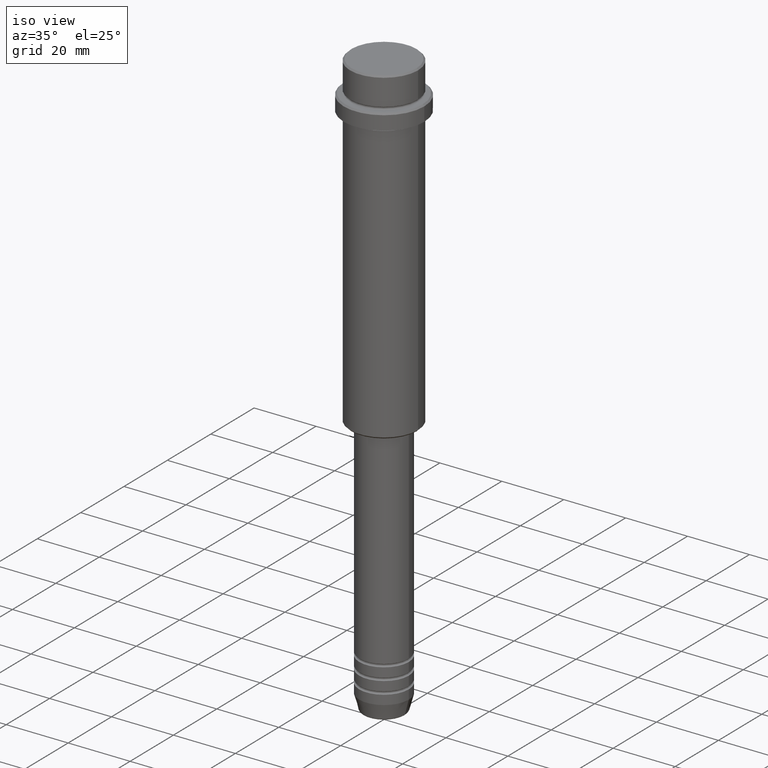
[diagram: clean part render]
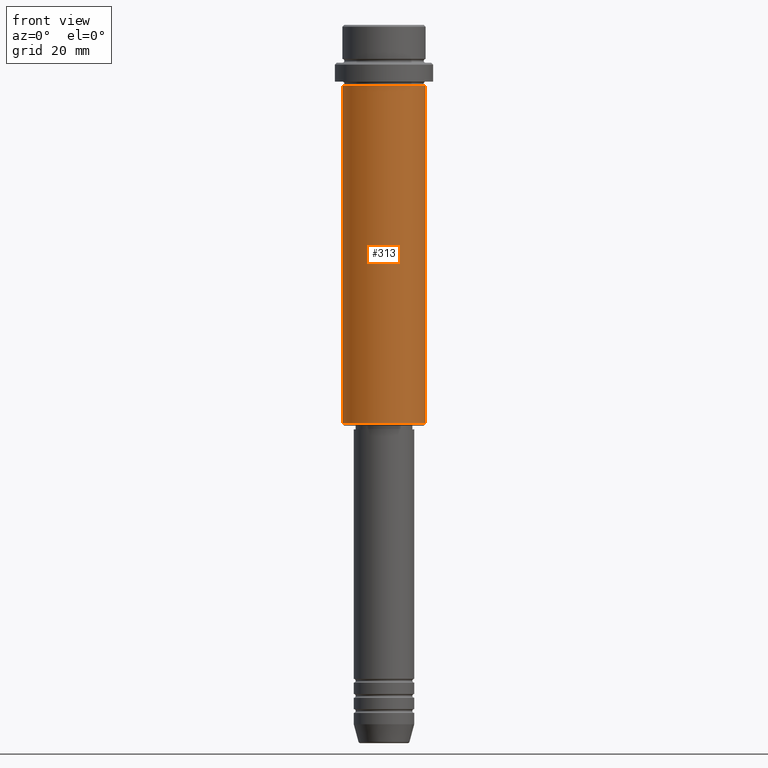
[diagram: tour spotlight — one face highlighted and labeled with its STEP entity id]
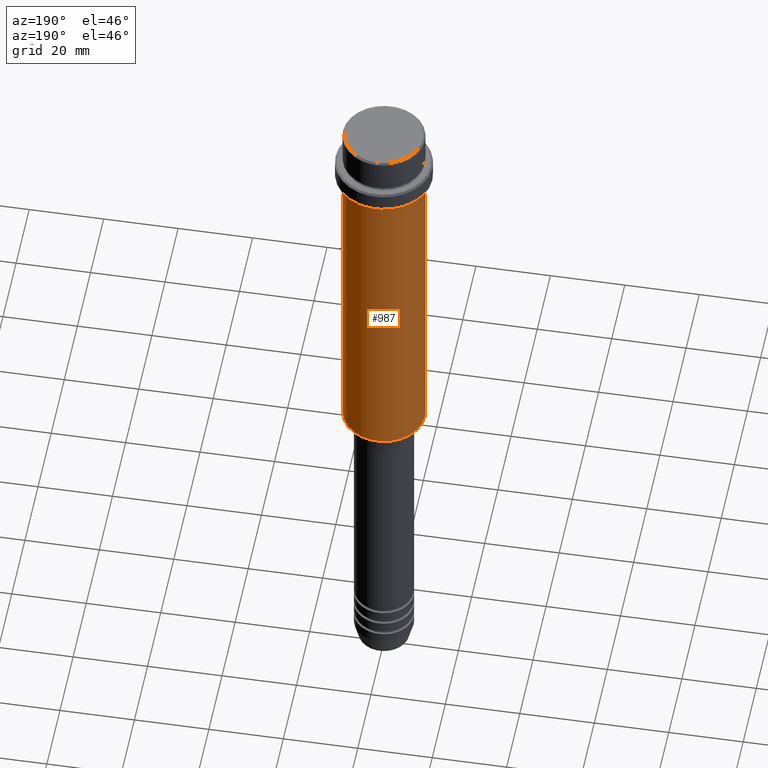
[diagram: tour spotlight — one face highlighted and labeled with its STEP entity id]
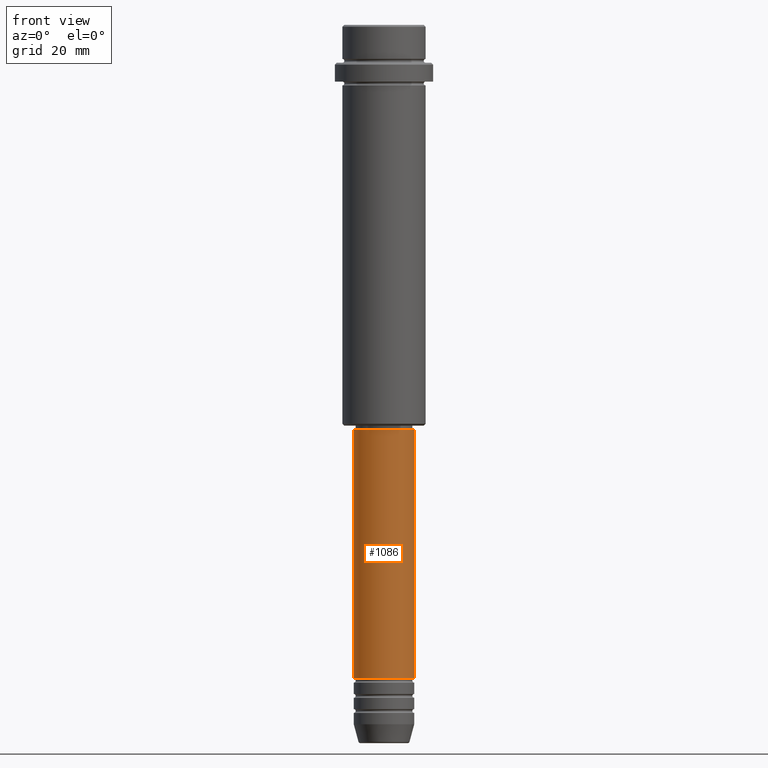
[diagram: tour spotlight — one face highlighted and labeled with its STEP entity id]
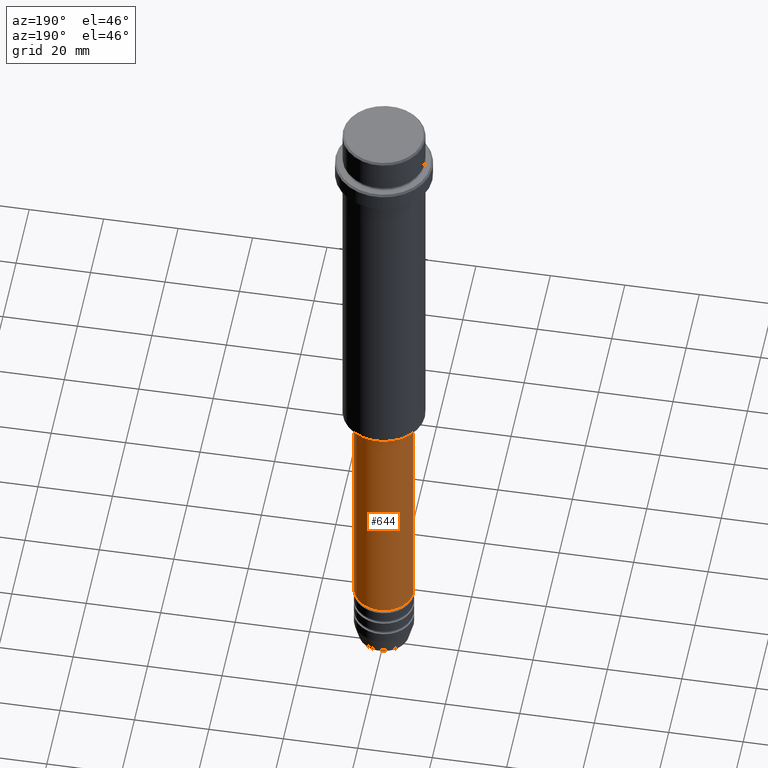
[diagram: tour spotlight — one face highlighted and labeled with its STEP entity id]
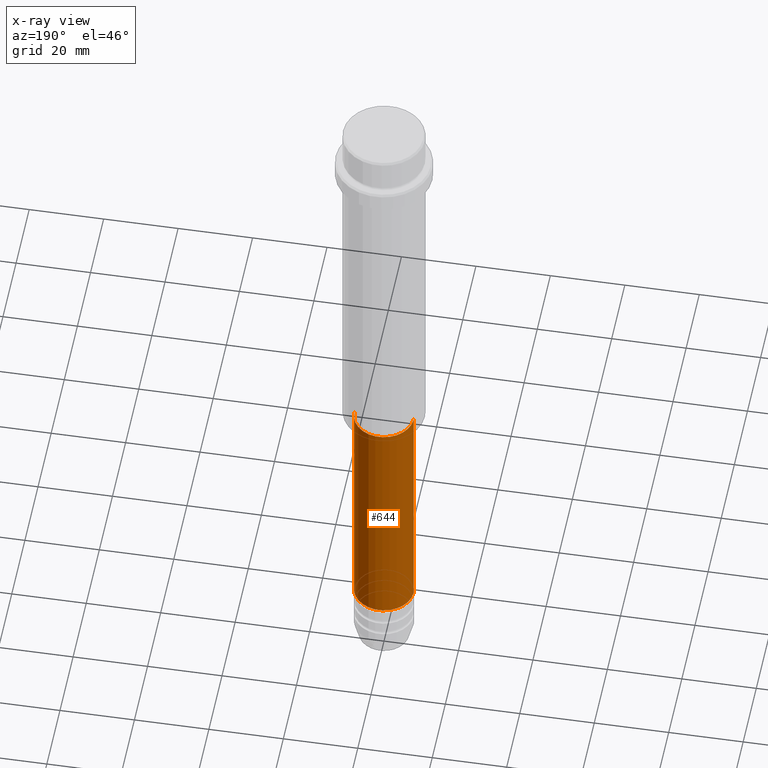
[diagram: x-ray of the same camera — body ghosted, this tour face saturated]
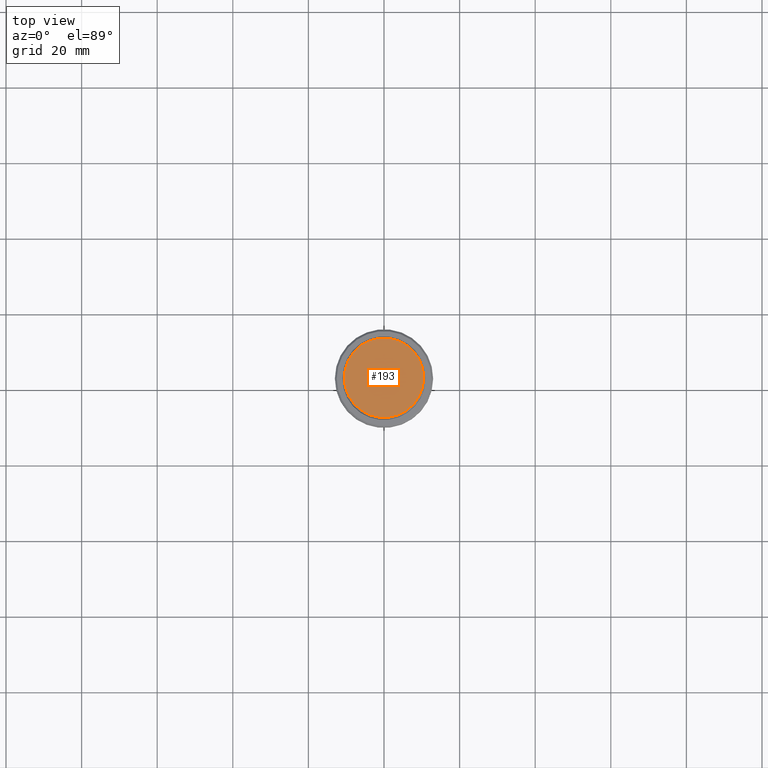
[diagram: tour spotlight — one face highlighted and labeled with its STEP entity id]
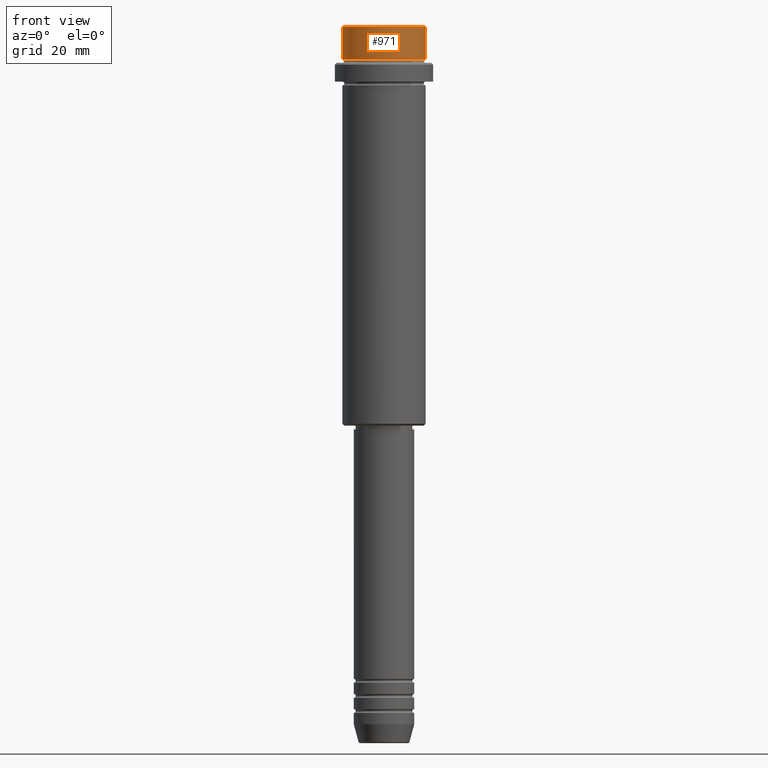
[diagram: tour spotlight — one face highlighted and labeled with its STEP entity id]
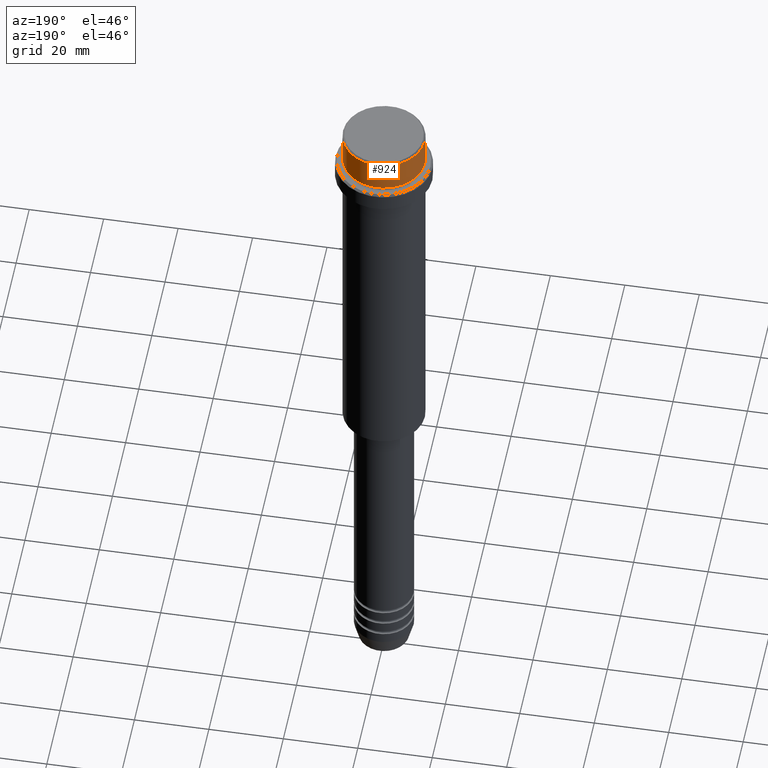
[diagram: tour spotlight — one face highlighted and labeled with its STEP entity id]
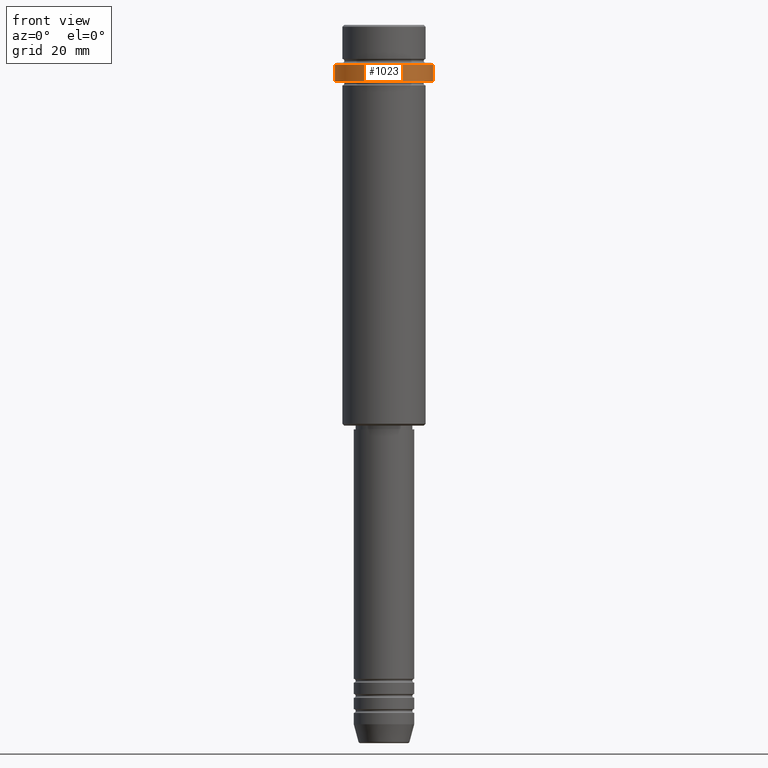
[diagram: tour spotlight — one face highlighted and labeled with its STEP entity id]
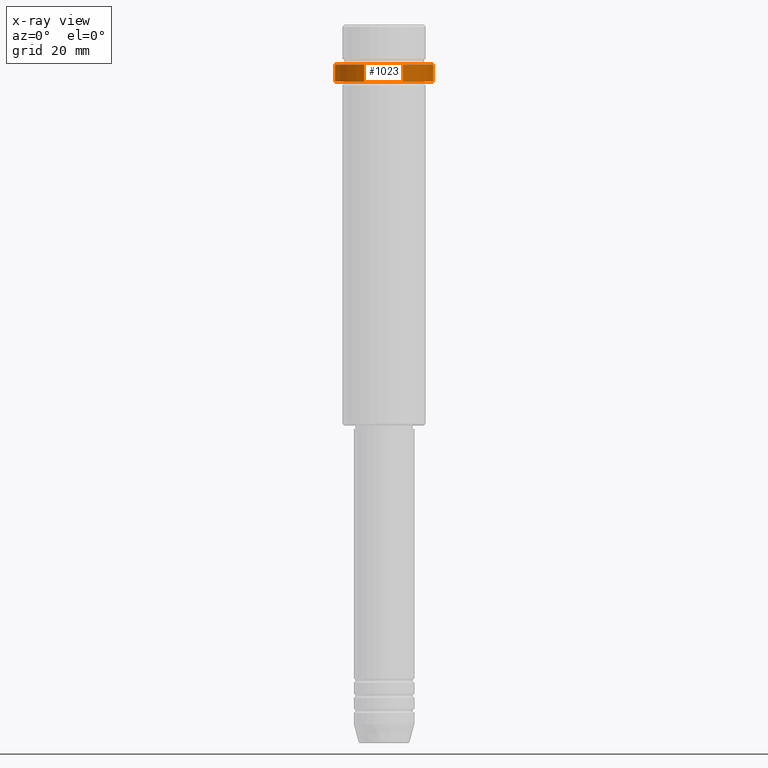
[diagram: x-ray of the same camera — body ghosted, this tour face saturated]
A machine part: a face-by-face anatomy tour. The part has 52 B-rep faces; the first image is the clean iso view, then the 8 largest visible faces are spotlighted one at a time (largest first), each with its STEP entity span.

Face 1 — front view, entity #313. In plain terms, the highlighted cylindrical surface (partial cylindrical patch) has radius 11 mm, axis along (-0, -0, 1).
Definition (entity closure, byte-faithful):
#43 = DIRECTION ( 'NONE',  ( -0.000000000000000000, -0.000000000000000000, 1.000000000000000000 ) ) ;
#83 = ORIENTED_EDGE ( 'NONE', *, *, #1134, .T. ) ;
#132 = CARTESIAN_POINT ( 'NONE',  ( 10.99999999999998757, 0.000000000000000000, -105.5000000000000995 ) ) ;
#171 = VECTOR ( 'NONE', #821, 1000.000000000000000 ) ;
#280 = VERTEX_POINT ( 'NONE', #1356 ) ;
#287 = CARTESIAN_POINT ( 'NONE',  ( 0.000000000000000000, 0.000000000000000000, -16.00000000000000355 ) ) ;
#294 = EDGE_CURVE ( 'NONE', #505, #435, #909, .T. ) ;
#313 = ADVANCED_FACE ( 'NONE', ( #1185 ), #968, .T. ) ;
#323 = CARTESIAN_POINT ( 'NONE',  ( 0.000000000000000000, 0.000000000000000000, -105.5000000000000995 ) ) ;
#435 = VERTEX_POINT ( 'NONE', #132 ) ;
#452 = AXIS2_PLACEMENT_3D ( 'NONE', #287, #43, #510 ) ;
#505 = VERTEX_POINT ( 'NONE', #1106 ) ;
#508 = ORIENTED_EDGE ( 'NONE', *, *, #572, .F. ) ;
#510 = DIRECTION ( 'NONE',  ( 1.000000000000000000, 0.000000000000000000, 0.000000000000000000 ) ) ;
#564 = VECTOR ( 'NONE', #789, 1000.000000000000000 ) ;
#572 = EDGE_CURVE ( 'NONE', #505, #698, #927, .T. ) ;
#635 = DIRECTION ( 'NONE',  ( -1.000000000000000000, 0.000000000000000000, 0.000000000000000000 ) ) ;
#698 = VERTEX_POINT ( 'NONE', #1235 ) ;
#706 = ORIENTED_EDGE ( 'NONE', *, *, #294, .T. ) ;
#708 = EDGE_CURVE ( 'NONE', #698, #280, #1053, .T. ) ;
#789 = DIRECTION ( 'NONE',  ( -0.000000000000000000, -0.000000000000000000, 1.000000000000000000 ) ) ;
#821 = DIRECTION ( 'NONE',  ( -0.000000000000000000, -0.000000000000000000, 1.000000000000000000 ) ) ;
#909 = CIRCLE ( 'NONE', #1099, 10.99999999999998757 ) ;
#927 = LINE ( 'NONE', #1375, #171 ) ;
#968 = CYLINDRICAL_SURFACE ( 'NONE', #1398, 10.99999999999998757 ) ;
#974 = DIRECTION ( 'NONE',  ( -0.000000000000000000, -0.000000000000000000, 1.000000000000000000 ) ) ;
#1053 = CIRCLE ( 'NONE', #452, 10.99999999999997158 ) ;
#1084 = CARTESIAN_POINT ( 'NONE',  ( 0.000000000000000000, 0.000000000000000000, 0.000000000000000000 ) ) ;
#1085 = ORIENTED_EDGE ( 'NONE', *, *, #708, .F. ) ;
#1099 = AXIS2_PLACEMENT_3D ( 'NONE', #323, #1276, #635 ) ;
#1106 = CARTESIAN_POINT ( 'NONE',  ( -10.99999999999998757, 1.347111479062086827E-15, -105.5000000000000995 ) ) ;
#1134 = EDGE_CURVE ( 'NONE', #435, #280, #1326, .T. ) ;
#1185 = FACE_OUTER_BOUND ( 'NONE', #1409, .T. ) ;
#1193 = DIRECTION ( 'NONE',  ( 1.000000000000000000, 0.000000000000000000, 0.000000000000000000 ) ) ;
#1235 = CARTESIAN_POINT ( 'NONE',  ( -10.99999999999997158, 1.347111479062085841E-15, -16.00000000000000355 ) ) ;
#1276 = DIRECTION ( 'NONE',  ( -0.000000000000000000, -0.000000000000000000, 1.000000000000000000 ) ) ;
#1326 = LINE ( 'NONE', #1337, #564 ) ;
#1337 = CARTESIAN_POINT ( 'NONE',  ( 10.99999999999998757, 0.000000000000000000, 0.000000000000000000 ) ) ;
#1356 = CARTESIAN_POINT ( 'NONE',  ( 10.99999999999997158, 0.000000000000000000, -16.00000000000000355 ) ) ;
#1375 = CARTESIAN_POINT ( 'NONE',  ( -10.99999999999998757, 1.347111479062086827E-15, 0.000000000000000000 ) ) ;
#1398 = AXIS2_PLACEMENT_3D ( 'NONE', #1084, #974, #1193 ) ;
#1409 = EDGE_LOOP ( 'NONE', ( #508, #706, #83, #1085 ) ) ;

Face 2 — auxiliary view, entity #987. In plain terms, the highlighted cylindrical surface (partial cylindrical patch) has radius 11 mm, axis along (-0, -0, 1).
Definition (entity closure, byte-faithful):
#6 = AXIS2_PLACEMENT_3D ( 'NONE', #388, #1044, #720 ) ;
#132 = CARTESIAN_POINT ( 'NONE',  ( 10.99999999999998757, 0.000000000000000000, -105.5000000000000995 ) ) ;
#162 = EDGE_CURVE ( 'NONE', #435, #505, #1050, .T. ) ;
#171 = VECTOR ( 'NONE', #821, 1000.000000000000000 ) ;
#215 = ORIENTED_EDGE ( 'NONE', *, *, #572, .T. ) ;
#223 = CARTESIAN_POINT ( 'NONE',  ( 0.000000000000000000, 0.000000000000000000, -16.00000000000000355 ) ) ;
#280 = VERTEX_POINT ( 'NONE', #1356 ) ;
#318 = DIRECTION ( 'NONE',  ( 1.000000000000000000, 0.000000000000000000, 0.000000000000000000 ) ) ;
#331 = CIRCLE ( 'NONE', #1401, 10.99999999999997158 ) ;
#388 = CARTESIAN_POINT ( 'NONE',  ( 0.000000000000000000, 0.000000000000000000, -105.5000000000000995 ) ) ;
#435 = VERTEX_POINT ( 'NONE', #132 ) ;
#505 = VERTEX_POINT ( 'NONE', #1106 ) ;
#564 = VECTOR ( 'NONE', #789, 1000.000000000000000 ) ;
#568 = ORIENTED_EDGE ( 'NONE', *, *, #1134, .F. ) ;
#572 = EDGE_CURVE ( 'NONE', #505, #698, #927, .T. ) ;
#604 = ORIENTED_EDGE ( 'NONE', *, *, #1058, .F. ) ;
#605 = FACE_OUTER_BOUND ( 'NONE', #1301, .T. ) ;
#641 = CYLINDRICAL_SURFACE ( 'NONE', #1255, 10.99999999999998757 ) ;
#659 = CARTESIAN_POINT ( 'NONE',  ( 0.000000000000000000, 0.000000000000000000, 0.000000000000000000 ) ) ;
#698 = VERTEX_POINT ( 'NONE', #1235 ) ;
#720 = DIRECTION ( 'NONE',  ( -1.000000000000000000, 0.000000000000000000, 0.000000000000000000 ) ) ;
#789 = DIRECTION ( 'NONE',  ( -0.000000000000000000, -0.000000000000000000, 1.000000000000000000 ) ) ;
#821 = DIRECTION ( 'NONE',  ( -0.000000000000000000, -0.000000000000000000, 1.000000000000000000 ) ) ;
#859 = DIRECTION ( 'NONE',  ( -0.000000000000000000, -0.000000000000000000, 1.000000000000000000 ) ) ;
#927 = LINE ( 'NONE', #1375, #171 ) ;
#987 = ADVANCED_FACE ( 'NONE', ( #605 ), #641, .T. ) ;
#1044 = DIRECTION ( 'NONE',  ( -0.000000000000000000, -0.000000000000000000, 1.000000000000000000 ) ) ;
#1050 = CIRCLE ( 'NONE', #6, 10.99999999999998757 ) ;
#1058 = EDGE_CURVE ( 'NONE', #280, #698, #331, .T. ) ;
#1072 = ORIENTED_EDGE ( 'NONE', *, *, #162, .T. ) ;
#1106 = CARTESIAN_POINT ( 'NONE',  ( -10.99999999999998757, 1.347111479062086827E-15, -105.5000000000000995 ) ) ;
#1134 = EDGE_CURVE ( 'NONE', #435, #280, #1326, .T. ) ;
#1200 = DIRECTION ( 'NONE',  ( -0.000000000000000000, -0.000000000000000000, 1.000000000000000000 ) ) ;
#1235 = CARTESIAN_POINT ( 'NONE',  ( -10.99999999999997158, 1.347111479062085841E-15, -16.00000000000000355 ) ) ;
#1255 = AXIS2_PLACEMENT_3D ( 'NONE', #659, #1200, #1413 ) ;
#1301 = EDGE_LOOP ( 'NONE', ( #1072, #215, #604, #568 ) ) ;
#1326 = LINE ( 'NONE', #1337, #564 ) ;
#1337 = CARTESIAN_POINT ( 'NONE',  ( 10.99999999999998757, 0.000000000000000000, 0.000000000000000000 ) ) ;
#1356 = CARTESIAN_POINT ( 'NONE',  ( 10.99999999999997158, 0.000000000000000000, -16.00000000000000355 ) ) ;
#1375 = CARTESIAN_POINT ( 'NONE',  ( -10.99999999999998757, 1.347111479062086827E-15, 0.000000000000000000 ) ) ;
#1401 = AXIS2_PLACEMENT_3D ( 'NONE', #223, #859, #318 ) ;
#1413 = DIRECTION ( 'NONE',  ( 1.000000000000000000, 0.000000000000000000, 0.000000000000000000 ) ) ;

Face 3 — front view, entity #1086. In plain terms, the highlighted cylindrical surface (edge-blend (fillet) strip) has radius 8 mm, axis along (-0, -0, 1).
Definition (entity closure, byte-faithful):
#39 = CARTESIAN_POINT ( 'NONE',  ( 0.000000000000000000, 0.000000000000000000, 0.000000000000000000 ) ) ;
#94 = EDGE_CURVE ( 'NONE', #920, #231, #351, .T. ) ;
#118 = EDGE_CURVE ( 'NONE', #231, #265, #1336, .T. ) ;
#124 = FACE_OUTER_BOUND ( 'NONE', #685, .T. ) ;
#146 = AXIS2_PLACEMENT_3D ( 'NONE', #404, #1022, #487 ) ;
#149 = CARTESIAN_POINT ( 'NONE',  ( -8.000000000000000000, 9.797174393178825657E-16, -172.9999999999999147 ) ) ;
#154 = DIRECTION ( 'NONE',  ( 1.000000000000000000, 0.000000000000000000, 0.000000000000000000 ) ) ;
#157 = CARTESIAN_POINT ( 'NONE',  ( 8.000000000000000000, 0.000000000000000000, -107.0000000000000000 ) ) ;
#169 = CARTESIAN_POINT ( 'NONE',  ( -8.000000000000000000, 9.797174393178825657E-16, 0.000000000000000000 ) ) ;
#231 = VERTEX_POINT ( 'NONE', #1262 ) ;
#265 = VERTEX_POINT ( 'NONE', #157 ) ;
#284 = AXIS2_PLACEMENT_3D ( 'NONE', #39, #1003, #997 ) ;
#351 = CIRCLE ( 'NONE', #426, 8.000000000000000000 ) ;
#364 = CARTESIAN_POINT ( 'NONE',  ( 8.000000000000000000, 0.000000000000000000, 0.000000000000000000 ) ) ;
#404 = CARTESIAN_POINT ( 'NONE',  ( 0.000000000000000000, 0.000000000000000000, -107.0000000000000000 ) ) ;
#426 = AXIS2_PLACEMENT_3D ( 'NONE', #591, #1203, #154 ) ;
#487 = DIRECTION ( 'NONE',  ( 1.000000000000000000, 0.000000000000000000, 0.000000000000000000 ) ) ;
#557 = ORIENTED_EDGE ( 'NONE', *, *, #94, .T. ) ;
#591 = CARTESIAN_POINT ( 'NONE',  ( 0.000000000000000000, 0.000000000000000000, -172.9999999999999147 ) ) ;
#636 = ORIENTED_EDGE ( 'NONE', *, *, #118, .T. ) ;
#649 = CIRCLE ( 'NONE', #146, 8.000000000000000000 ) ;
#685 = EDGE_LOOP ( 'NONE', ( #1259, #557, #636, #882 ) ) ;
#691 = EDGE_CURVE ( 'NONE', #1342, #265, #649, .T. ) ;
#709 = VECTOR ( 'NONE', #788, 1000.000000000000000 ) ;
#788 = DIRECTION ( 'NONE',  ( -0.000000000000000000, -0.000000000000000000, 1.000000000000000000 ) ) ;
#882 = ORIENTED_EDGE ( 'NONE', *, *, #691, .F. ) ;
#885 = CYLINDRICAL_SURFACE ( 'NONE', #284, 8.000000000000000000 ) ;
#920 = VERTEX_POINT ( 'NONE', #149 ) ;
#977 = EDGE_CURVE ( 'NONE', #920, #1342, #1371, .T. ) ;
#997 = DIRECTION ( 'NONE',  ( 1.000000000000000000, 0.000000000000000000, 0.000000000000000000 ) ) ;
#1003 = DIRECTION ( 'NONE',  ( -0.000000000000000000, -0.000000000000000000, 1.000000000000000000 ) ) ;
#1022 = DIRECTION ( 'NONE',  ( -0.000000000000000000, -0.000000000000000000, 1.000000000000000000 ) ) ;
#1063 = CARTESIAN_POINT ( 'NONE',  ( -8.000000000000000000, 9.797174393178825657E-16, -107.0000000000000000 ) ) ;
#1086 = ADVANCED_FACE ( 'NONE', ( #124 ), #885, .T. ) ;
#1151 = DIRECTION ( 'NONE',  ( -0.000000000000000000, -0.000000000000000000, 1.000000000000000000 ) ) ;
#1203 = DIRECTION ( 'NONE',  ( -0.000000000000000000, -0.000000000000000000, 1.000000000000000000 ) ) ;
#1229 = VECTOR ( 'NONE', #1151, 1000.000000000000000 ) ;
#1259 = ORIENTED_EDGE ( 'NONE', *, *, #977, .F. ) ;
#1262 = CARTESIAN_POINT ( 'NONE',  ( 8.000000000000000000, 0.000000000000000000, -172.9999999999999147 ) ) ;
#1336 = LINE ( 'NONE', #364, #709 ) ;
#1342 = VERTEX_POINT ( 'NONE', #1063 ) ;
#1371 = LINE ( 'NONE', #169, #1229 ) ;

Face 4 — auxiliary view, entity #644. An x-ray twin of the same camera follows (body ghosted, this face saturated) — the face is partly hidden behind the body. In plain terms, the highlighted cylindrical surface (edge-blend (fillet) strip) has radius 8 mm, axis along (-0, -0, 1).
Definition (entity closure, byte-faithful):
#10 = CARTESIAN_POINT ( 'NONE',  ( 0.000000000000000000, 0.000000000000000000, -107.0000000000000000 ) ) ;
#36 = EDGE_CURVE ( 'NONE', #231, #920, #398, .T. ) ;
#53 = FACE_OUTER_BOUND ( 'NONE', #733, .T. ) ;
#104 = EDGE_CURVE ( 'NONE', #265, #1342, #234, .T. ) ;
#118 = EDGE_CURVE ( 'NONE', #231, #265, #1336, .T. ) ;
#125 = AXIS2_PLACEMENT_3D ( 'NONE', #1111, #476, #584 ) ;
#139 = DIRECTION ( 'NONE',  ( 1.000000000000000000, 0.000000000000000000, 0.000000000000000000 ) ) ;
#149 = CARTESIAN_POINT ( 'NONE',  ( -8.000000000000000000, 9.797174393178825657E-16, -172.9999999999999147 ) ) ;
#157 = CARTESIAN_POINT ( 'NONE',  ( 8.000000000000000000, 0.000000000000000000, -107.0000000000000000 ) ) ;
#169 = CARTESIAN_POINT ( 'NONE',  ( -8.000000000000000000, 9.797174393178825657E-16, 0.000000000000000000 ) ) ;
#219 = AXIS2_PLACEMENT_3D ( 'NONE', #687, #590, #718 ) ;
#231 = VERTEX_POINT ( 'NONE', #1262 ) ;
#234 = CIRCLE ( 'NONE', #1249, 8.000000000000000000 ) ;
#265 = VERTEX_POINT ( 'NONE', #157 ) ;
#364 = CARTESIAN_POINT ( 'NONE',  ( 8.000000000000000000, 0.000000000000000000, 0.000000000000000000 ) ) ;
#398 = CIRCLE ( 'NONE', #125, 8.000000000000000000 ) ;
#476 = DIRECTION ( 'NONE',  ( -0.000000000000000000, -0.000000000000000000, 1.000000000000000000 ) ) ;
#584 = DIRECTION ( 'NONE',  ( 1.000000000000000000, 0.000000000000000000, 0.000000000000000000 ) ) ;
#590 = DIRECTION ( 'NONE',  ( -0.000000000000000000, -0.000000000000000000, 1.000000000000000000 ) ) ;
#644 = ADVANCED_FACE ( 'NONE', ( #53 ), #921, .T. ) ;
#687 = CARTESIAN_POINT ( 'NONE',  ( 0.000000000000000000, 0.000000000000000000, 0.000000000000000000 ) ) ;
#709 = VECTOR ( 'NONE', #788, 1000.000000000000000 ) ;
#718 = DIRECTION ( 'NONE',  ( 1.000000000000000000, 0.000000000000000000, 0.000000000000000000 ) ) ;
#733 = EDGE_LOOP ( 'NONE', ( #942, #846, #1307, #1389 ) ) ;
#788 = DIRECTION ( 'NONE',  ( -0.000000000000000000, -0.000000000000000000, 1.000000000000000000 ) ) ;
#846 = ORIENTED_EDGE ( 'NONE', *, *, #977, .T. ) ;
#920 = VERTEX_POINT ( 'NONE', #149 ) ;
#921 = CYLINDRICAL_SURFACE ( 'NONE', #219, 8.000000000000000000 ) ;
#942 = ORIENTED_EDGE ( 'NONE', *, *, #36, .T. ) ;
#977 = EDGE_CURVE ( 'NONE', #920, #1342, #1371, .T. ) ;
#1063 = CARTESIAN_POINT ( 'NONE',  ( -8.000000000000000000, 9.797174393178825657E-16, -107.0000000000000000 ) ) ;
#1111 = CARTESIAN_POINT ( 'NONE',  ( 0.000000000000000000, 0.000000000000000000, -172.9999999999999147 ) ) ;
#1151 = DIRECTION ( 'NONE',  ( -0.000000000000000000, -0.000000000000000000, 1.000000000000000000 ) ) ;
#1229 = VECTOR ( 'NONE', #1151, 1000.000000000000000 ) ;
#1249 = AXIS2_PLACEMENT_3D ( 'NONE', #10, #1310, #139 ) ;
#1262 = CARTESIAN_POINT ( 'NONE',  ( 8.000000000000000000, 0.000000000000000000, -172.9999999999999147 ) ) ;
#1307 = ORIENTED_EDGE ( 'NONE', *, *, #104, .F. ) ;
#1310 = DIRECTION ( 'NONE',  ( -0.000000000000000000, -0.000000000000000000, 1.000000000000000000 ) ) ;
#1336 = LINE ( 'NONE', #364, #709 ) ;
#1342 = VERTEX_POINT ( 'NONE', #1063 ) ;
#1371 = LINE ( 'NONE', #169, #1229 ) ;
#1389 = ORIENTED_EDGE ( 'NONE', *, *, #118, .F. ) ;

Face 5 — top view, entity #193. In plain terms, the highlighted planar face has unit normal (0, -0, 1).
Definition (entity closure, byte-faithful):
#38 = FACE_OUTER_BOUND ( 'NONE', #973, .T. ) ;
#49 = AXIS2_PLACEMENT_3D ( 'NONE', #865, #551, #1285 ) ;
#60 = VERTEX_POINT ( 'NONE', #884 ) ;
#192 = AXIS2_PLACEMENT_3D ( 'NONE', #276, #406, #1160 ) ;
#193 = ADVANCED_FACE ( 'NONE', ( #38 ), #834, .T. ) ;
#276 = CARTESIAN_POINT ( 'NONE',  ( 0.000000000000000000, 0.000000000000000000, 0.000000000000000000 ) ) ;
#298 = ORIENTED_EDGE ( 'NONE', *, *, #705, .T. ) ;
#301 = EDGE_CURVE ( 'NONE', #1290, #60, #799, .T. ) ;
#406 = DIRECTION ( 'NONE',  ( 0.000000000000000000, -0.000000000000000000, 1.000000000000000000 ) ) ;
#417 = CARTESIAN_POINT ( 'NONE',  ( 10.50000000000000888, 1.316495309083404420E-15, 0.000000000000000000 ) ) ;
#551 = DIRECTION ( 'NONE',  ( -0.000000000000000000, -0.000000000000000000, 1.000000000000000000 ) ) ;
#595 = DIRECTION ( 'NONE',  ( -0.000000000000000000, -0.000000000000000000, 1.000000000000000000 ) ) ;
#705 = EDGE_CURVE ( 'NONE', #60, #1290, #759, .T. ) ;
#707 = CARTESIAN_POINT ( 'NONE',  ( 0.000000000000000000, 0.000000000000000000, 0.000000000000000000 ) ) ;
#759 = CIRCLE ( 'NONE', #1352, 10.50000000000000888 ) ;
#799 = CIRCLE ( 'NONE', #49, 10.50000000000000888 ) ;
#834 = PLANE ( 'NONE',  #192 ) ;
#865 = CARTESIAN_POINT ( 'NONE',  ( 0.000000000000000000, 0.000000000000000000, 0.000000000000000000 ) ) ;
#868 = ORIENTED_EDGE ( 'NONE', *, *, #301, .T. ) ;
#884 = CARTESIAN_POINT ( 'NONE',  ( -10.50000000000000888, 0.000000000000000000, 0.000000000000000000 ) ) ;
#973 = EDGE_LOOP ( 'NONE', ( #298, #868 ) ) ;
#1160 = DIRECTION ( 'NONE',  ( 1.000000000000000000, 0.000000000000000000, 0.000000000000000000 ) ) ;
#1230 = DIRECTION ( 'NONE',  ( 1.000000000000000000, 0.000000000000000000, 0.000000000000000000 ) ) ;
#1285 = DIRECTION ( 'NONE',  ( 1.000000000000000000, 0.000000000000000000, 0.000000000000000000 ) ) ;
#1290 = VERTEX_POINT ( 'NONE', #417 ) ;
#1352 = AXIS2_PLACEMENT_3D ( 'NONE', #707, #595, #1230 ) ;

Face 6 — front view, entity #971. In plain terms, the highlighted cylindrical surface (partial cylindrical patch) has radius 11 mm, axis along (-0, -0, 1).
Definition (entity closure, byte-faithful):
#2 = ORIENTED_EDGE ( 'NONE', *, *, #546, .T. ) ;
#9 = CIRCLE ( 'NONE', #983, 10.99999999999997158 ) ;
#21 = DIRECTION ( 'NONE',  ( 1.000000000000000000, 0.000000000000000000, 0.000000000000000000 ) ) ;
#26 = DIRECTION ( 'NONE',  ( 1.000000000000000000, 0.000000000000000000, 0.000000000000000000 ) ) ;
#106 = VERTEX_POINT ( 'NONE', #232 ) ;
#179 = DIRECTION ( 'NONE',  ( -0.000000000000000000, -0.000000000000000000, 1.000000000000000000 ) ) ;
#232 = CARTESIAN_POINT ( 'NONE',  ( 10.99999999999998757, 0.000000000000000000, -0.4999999999999882871 ) ) ;
#297 = CARTESIAN_POINT ( 'NONE',  ( 10.99999999999997158, 0.000000000000000000, -9.000000000000000000 ) ) ;
#344 = CARTESIAN_POINT ( 'NONE',  ( 0.000000000000000000, 0.000000000000000000, -0.4999999999999882871 ) ) ;
#349 = ORIENTED_EDGE ( 'NONE', *, *, #972, .T. ) ;
#350 = CYLINDRICAL_SURFACE ( 'NONE', #802, 10.99999999999998757 ) ;
#528 = LINE ( 'NONE', #952, #1209 ) ;
#546 = EDGE_CURVE ( 'NONE', #106, #817, #602, .T. ) ;
#602 = CIRCLE ( 'NONE', #1277, 10.99999999999998757 ) ;
#653 = VERTEX_POINT ( 'NONE', #694 ) ;
#680 = LINE ( 'NONE', #1114, #1031 ) ;
#694 = CARTESIAN_POINT ( 'NONE',  ( -10.99999999999997158, 1.347111479062085841E-15, -9.000000000000000000 ) ) ;
#769 = DIRECTION ( 'NONE',  ( -0.000000000000000000, -0.000000000000000000, 1.000000000000000000 ) ) ;
#793 = EDGE_CURVE ( 'NONE', #653, #1404, #9, .T. ) ;
#802 = AXIS2_PLACEMENT_3D ( 'NONE', #1109, #999, #26 ) ;
#817 = VERTEX_POINT ( 'NONE', #1065 ) ;
#833 = DIRECTION ( 'NONE',  ( -0.000000000000000000, -0.000000000000000000, 1.000000000000000000 ) ) ;
#952 = CARTESIAN_POINT ( 'NONE',  ( -10.99999999999998757, 1.347111479062086827E-15, 0.000000000000000000 ) ) ;
#971 = ADVANCED_FACE ( 'NONE', ( #1323 ), #350, .T. ) ;
#972 = EDGE_CURVE ( 'NONE', #1404, #106, #680, .T. ) ;
#983 = AXIS2_PLACEMENT_3D ( 'NONE', #1267, #833, #1201 ) ;
#995 = DIRECTION ( 'NONE',  ( 0.000000000000000000, 0.000000000000000000, -1.000000000000000000 ) ) ;
#999 = DIRECTION ( 'NONE',  ( -0.000000000000000000, -0.000000000000000000, 1.000000000000000000 ) ) ;
#1031 = VECTOR ( 'NONE', #179, 1000.000000000000000 ) ;
#1039 = EDGE_CURVE ( 'NONE', #653, #817, #528, .T. ) ;
#1065 = CARTESIAN_POINT ( 'NONE',  ( -10.99999999999998757, 1.347111479062086827E-15, -0.4999999999999882871 ) ) ;
#1087 = EDGE_LOOP ( 'NONE', ( #1215, #1247, #349, #2 ) ) ;
#1109 = CARTESIAN_POINT ( 'NONE',  ( 0.000000000000000000, 0.000000000000000000, 0.000000000000000000 ) ) ;
#1114 = CARTESIAN_POINT ( 'NONE',  ( 10.99999999999998757, 0.000000000000000000, 0.000000000000000000 ) ) ;
#1201 = DIRECTION ( 'NONE',  ( 1.000000000000000000, 0.000000000000000000, 0.000000000000000000 ) ) ;
#1209 = VECTOR ( 'NONE', #769, 1000.000000000000000 ) ;
#1215 = ORIENTED_EDGE ( 'NONE', *, *, #1039, .F. ) ;
#1247 = ORIENTED_EDGE ( 'NONE', *, *, #793, .T. ) ;
#1267 = CARTESIAN_POINT ( 'NONE',  ( 0.000000000000000000, 0.000000000000000000, -9.000000000000000000 ) ) ;
#1277 = AXIS2_PLACEMENT_3D ( 'NONE', #344, #995, #21 ) ;
#1323 = FACE_OUTER_BOUND ( 'NONE', #1087, .T. ) ;
#1404 = VERTEX_POINT ( 'NONE', #297 ) ;

Face 7 — auxiliary view, entity #924. In plain terms, the highlighted cylindrical surface (partial cylindrical patch) has radius 11 mm, axis along (-0, -0, 1).
Definition (entity closure, byte-faithful):
#23 = CARTESIAN_POINT ( 'NONE',  ( 0.000000000000000000, 0.000000000000000000, -9.000000000000000000 ) ) ;
#106 = VERTEX_POINT ( 'NONE', #232 ) ;
#135 = ORIENTED_EDGE ( 'NONE', *, *, #1117, .T. ) ;
#179 = DIRECTION ( 'NONE',  ( -0.000000000000000000, -0.000000000000000000, 1.000000000000000000 ) ) ;
#232 = CARTESIAN_POINT ( 'NONE',  ( 10.99999999999998757, 0.000000000000000000, -0.4999999999999882871 ) ) ;
#297 = CARTESIAN_POINT ( 'NONE',  ( 10.99999999999997158, 0.000000000000000000, -9.000000000000000000 ) ) ;
#332 = AXIS2_PLACEMENT_3D ( 'NONE', #1220, #1007, #785 ) ;
#360 = FACE_OUTER_BOUND ( 'NONE', #858, .T. ) ;
#448 = DIRECTION ( 'NONE',  ( 0.000000000000000000, 0.000000000000000000, -1.000000000000000000 ) ) ;
#467 = DIRECTION ( 'NONE',  ( 1.000000000000000000, 0.000000000000000000, 0.000000000000000000 ) ) ;
#477 = DIRECTION ( 'NONE',  ( -0.000000000000000000, -0.000000000000000000, 1.000000000000000000 ) ) ;
#485 = CYLINDRICAL_SURFACE ( 'NONE', #332, 10.99999999999998757 ) ;
#528 = LINE ( 'NONE', #952, #1209 ) ;
#550 = ORIENTED_EDGE ( 'NONE', *, *, #1039, .T. ) ;
#606 = CIRCLE ( 'NONE', #939, 10.99999999999998757 ) ;
#653 = VERTEX_POINT ( 'NONE', #694 ) ;
#680 = LINE ( 'NONE', #1114, #1031 ) ;
#694 = CARTESIAN_POINT ( 'NONE',  ( -10.99999999999997158, 1.347111479062085841E-15, -9.000000000000000000 ) ) ;
#721 = ORIENTED_EDGE ( 'NONE', *, *, #1048, .T. ) ;
#769 = DIRECTION ( 'NONE',  ( -0.000000000000000000, -0.000000000000000000, 1.000000000000000000 ) ) ;
#785 = DIRECTION ( 'NONE',  ( 1.000000000000000000, 0.000000000000000000, 0.000000000000000000 ) ) ;
#817 = VERTEX_POINT ( 'NONE', #1065 ) ;
#858 = EDGE_LOOP ( 'NONE', ( #135, #550, #721, #1316 ) ) ;
#924 = ADVANCED_FACE ( 'NONE', ( #360 ), #485, .T. ) ;
#939 = AXIS2_PLACEMENT_3D ( 'NONE', #960, #448, #1405 ) ;
#952 = CARTESIAN_POINT ( 'NONE',  ( -10.99999999999998757, 1.347111479062086827E-15, 0.000000000000000000 ) ) ;
#960 = CARTESIAN_POINT ( 'NONE',  ( 0.000000000000000000, 0.000000000000000000, -0.4999999999999882871 ) ) ;
#972 = EDGE_CURVE ( 'NONE', #1404, #106, #680, .T. ) ;
#1007 = DIRECTION ( 'NONE',  ( -0.000000000000000000, -0.000000000000000000, 1.000000000000000000 ) ) ;
#1031 = VECTOR ( 'NONE', #179, 1000.000000000000000 ) ;
#1039 = EDGE_CURVE ( 'NONE', #653, #817, #528, .T. ) ;
#1048 = EDGE_CURVE ( 'NONE', #817, #106, #606, .T. ) ;
#1065 = CARTESIAN_POINT ( 'NONE',  ( -10.99999999999998757, 1.347111479062086827E-15, -0.4999999999999882871 ) ) ;
#1114 = CARTESIAN_POINT ( 'NONE',  ( 10.99999999999998757, 0.000000000000000000, 0.000000000000000000 ) ) ;
#1117 = EDGE_CURVE ( 'NONE', #1404, #653, #1169, .T. ) ;
#1169 = CIRCLE ( 'NONE', #1333, 10.99999999999997158 ) ;
#1209 = VECTOR ( 'NONE', #769, 1000.000000000000000 ) ;
#1220 = CARTESIAN_POINT ( 'NONE',  ( 0.000000000000000000, 0.000000000000000000, 0.000000000000000000 ) ) ;
#1316 = ORIENTED_EDGE ( 'NONE', *, *, #972, .F. ) ;
#1333 = AXIS2_PLACEMENT_3D ( 'NONE', #23, #477, #467 ) ;
#1404 = VERTEX_POINT ( 'NONE', #297 ) ;
#1405 = DIRECTION ( 'NONE',  ( 1.000000000000000000, 0.000000000000000000, 0.000000000000000000 ) ) ;

Face 8 — front view, entity #1023. An x-ray twin of the same camera follows (body ghosted, this face saturated) — the face is partly hidden behind the body. In plain terms, the highlighted cylindrical surface (partial cylindrical patch) has radius 13 mm, axis along (-0, -0, 1).
Definition (entity closure, byte-faithful):
#4 = ORIENTED_EDGE ( 'NONE', *, *, #16, .T. ) ;
#16 = EDGE_CURVE ( 'NONE', #1027, #620, #1396, .T. ) ;
#48 = EDGE_LOOP ( 'NONE', ( #1138, #4, #1094, #946 ) ) ;
#63 = CARTESIAN_POINT ( 'NONE',  ( 0.000000000000000000, 0.000000000000000000, -10.50000000000000711 ) ) ;
#97 = DIRECTION ( 'NONE',  ( 1.000000000000000000, 0.000000000000000000, 0.000000000000000000 ) ) ;
#115 = DIRECTION ( 'NONE',  ( -0.000000000000000000, -0.000000000000000000, 1.000000000000000000 ) ) ;
#163 = DIRECTION ( 'NONE',  ( -0.000000000000000000, -0.000000000000000000, 1.000000000000000000 ) ) ;
#172 = CIRCLE ( 'NONE', #356, 13.00000000000000000 ) ;
#225 = CARTESIAN_POINT ( 'NONE',  ( -13.00000000000000000, 1.592040838891559095E-15, 0.000000000000000000 ) ) ;
#315 = CARTESIAN_POINT ( 'NONE',  ( -13.00000000000000000, 1.592040838891559095E-15, -10.50000000000000711 ) ) ;
#356 = AXIS2_PLACEMENT_3D ( 'NONE', #63, #407, #1357 ) ;
#381 = CARTESIAN_POINT ( 'NONE',  ( 13.00000000000000000, 0.000000000000000000, -15.00000000000000178 ) ) ;
#407 = DIRECTION ( 'NONE',  ( 0.000000000000000000, 0.000000000000000000, -1.000000000000000000 ) ) ;
#456 = DIRECTION ( 'NONE',  ( -0.000000000000000000, -0.000000000000000000, 1.000000000000000000 ) ) ;
#482 = CARTESIAN_POINT ( 'NONE',  ( 13.00000000000000000, 0.000000000000000000, -10.50000000000000711 ) ) ;
#496 = VERTEX_POINT ( 'NONE', #482 ) ;
#548 = FACE_OUTER_BOUND ( 'NONE', #48, .T. ) ;
#570 = EDGE_CURVE ( 'NONE', #620, #496, #1000, .T. ) ;
#620 = VERTEX_POINT ( 'NONE', #381 ) ;
#844 = VERTEX_POINT ( 'NONE', #315 ) ;
#895 = AXIS2_PLACEMENT_3D ( 'NONE', #1394, #115, #97 ) ;
#896 = VECTOR ( 'NONE', #1080, 1000.000000000000000 ) ;
#936 = VECTOR ( 'NONE', #163, 1000.000000000000000 ) ;
#946 = ORIENTED_EDGE ( 'NONE', *, *, #1142, .T. ) ;
#1000 = LINE ( 'NONE', #1135, #936 ) ;
#1014 = DIRECTION ( 'NONE',  ( 1.000000000000000000, 0.000000000000000000, 0.000000000000000000 ) ) ;
#1023 = ADVANCED_FACE ( 'NONE', ( #548 ), #1280, .T. ) ;
#1027 = VERTEX_POINT ( 'NONE', #1294 ) ;
#1080 = DIRECTION ( 'NONE',  ( -0.000000000000000000, -0.000000000000000000, 1.000000000000000000 ) ) ;
#1094 = ORIENTED_EDGE ( 'NONE', *, *, #570, .T. ) ;
#1116 = CARTESIAN_POINT ( 'NONE',  ( 0.000000000000000000, 0.000000000000000000, -15.00000000000000178 ) ) ;
#1135 = CARTESIAN_POINT ( 'NONE',  ( 13.00000000000000000, 0.000000000000000000, 0.000000000000000000 ) ) ;
#1138 = ORIENTED_EDGE ( 'NONE', *, *, #1309, .F. ) ;
#1142 = EDGE_CURVE ( 'NONE', #496, #844, #172, .T. ) ;
#1182 = LINE ( 'NONE', #225, #896 ) ;
#1204 = AXIS2_PLACEMENT_3D ( 'NONE', #1116, #456, #1014 ) ;
#1280 = CYLINDRICAL_SURFACE ( 'NONE', #895, 13.00000000000000000 ) ;
#1294 = CARTESIAN_POINT ( 'NONE',  ( -13.00000000000000000, 1.592040838891559095E-15, -15.00000000000000178 ) ) ;
#1309 = EDGE_CURVE ( 'NONE', #1027, #844, #1182, .T. ) ;
#1357 = DIRECTION ( 'NONE',  ( 1.000000000000000000, 0.000000000000000000, 0.000000000000000000 ) ) ;
#1394 = CARTESIAN_POINT ( 'NONE',  ( 0.000000000000000000, 0.000000000000000000, 0.000000000000000000 ) ) ;
#1396 = CIRCLE ( 'NONE', #1204, 13.00000000000000000 ) ;